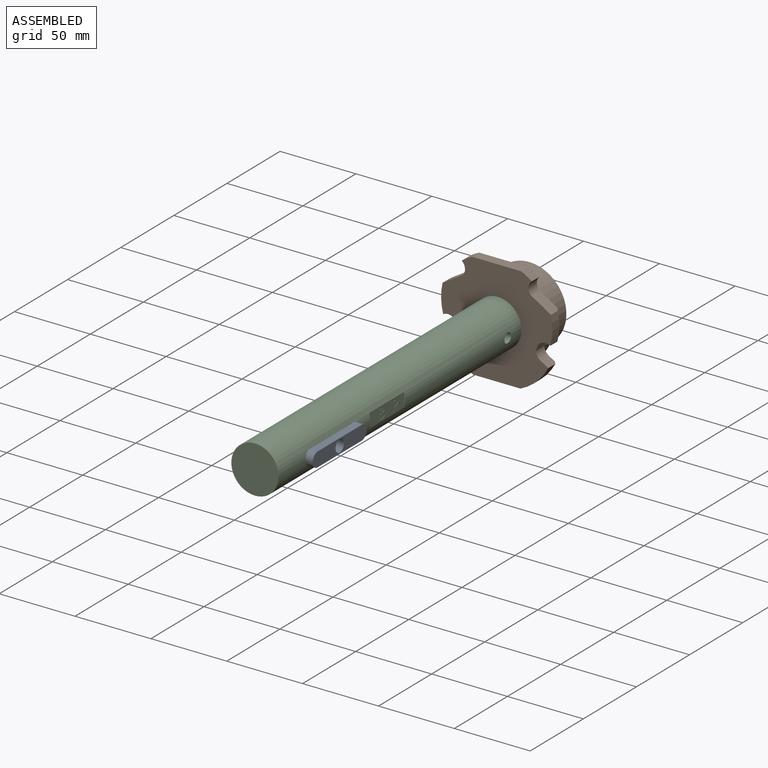
[diagram: assembled view]
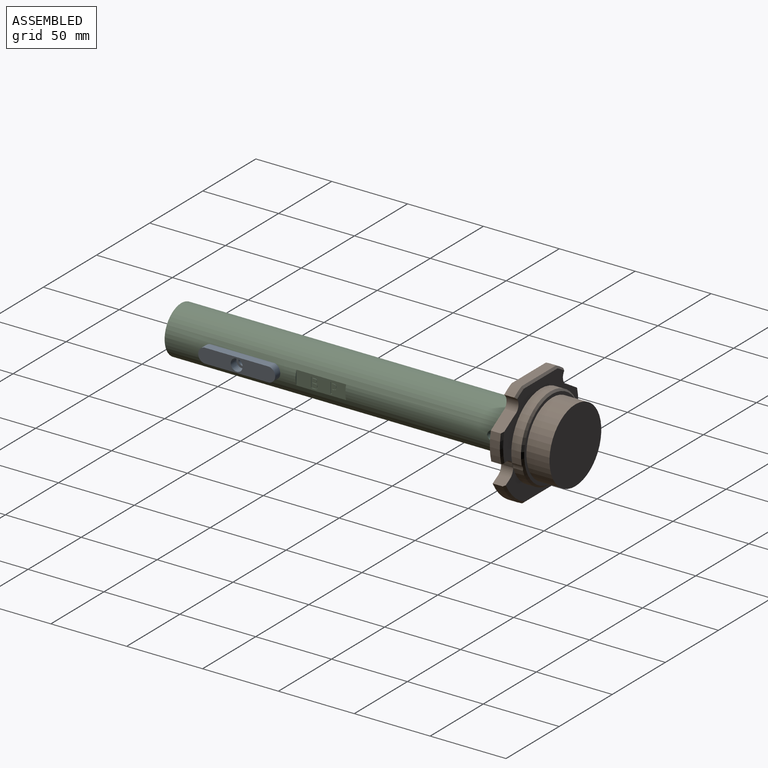
[diagram: assembled view, second angle]
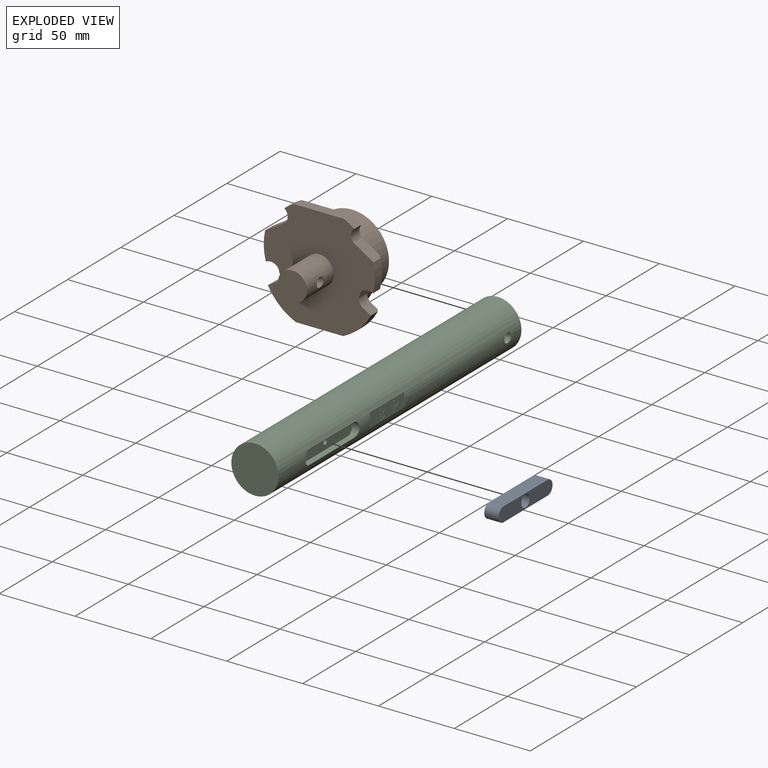
[diagram: exploded view]
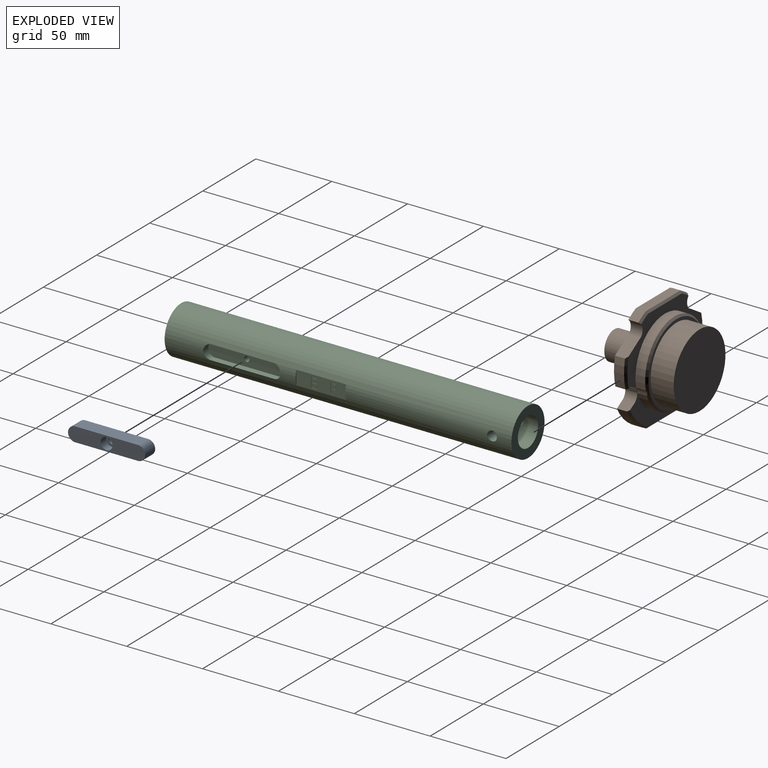
[diagram: exploded view, second angle]
ASSEMBLY  parts=3 mates=2
PART A: 9 faces, bbox 50.8x9.5x9.5 mm
  f0: plane 42.57x9.49mm, normal (0,1,0), area 403.8mm2, adj f1,f3,f4,f5
  f1: cylinder r=4.78mm len=9.49mm, axis (0,0,-1), area 129.9mm2, adj f0,f2,f4,f5
  f2: plane 42.57x9.49mm, normal (0,-1,0), area 403.8mm2, adj f1,f3,f4,f5
  f3: cylinder r=4.78mm len=9.49mm, axis (0,0,-1), area 129.9mm2, adj f0,f2,f4,f5
  f4: plane 50.8x9.47mm, normal (0,0,1), area 444.2mm2, adj f0,f1,f2,f3,f8
  f5: plane 50.8x9.47mm, normal (0,0,-1), area 413.8mm2, adj f0,f1,f2,f3,f6
  f6: cylinder r=3.94mm len=7.87mm, axis (0,0,-1), area 129.7mm2, adj f5,f7
  f7: plane 7.87x7.87mm, normal (0,0,-1), area 30.4mm2, adj f6,f8
  f8: cylinder r=2.41mm len=4.83mm, axis (0,0,-1), area 64.3mm2, adj f4,f7
PART B: 46 faces, bbox 73.4x56.2x70.1 mm
  f0: cylinder r=9.53mm len=25.4mm, axis (0,1,0), area 1455.9mm2, adj f26,f44,f45
  f1: plane 3.47x1.05mm, normal (0,1,0), area 0.8mm2, adj f5,f28
  f2: plane 65.72x24.12mm, normal (0,1,0), area 611.5mm2, adj f6,f7,f11,f12,f29,f41,f42,f43
  f3: plane 3.47x1.05mm, normal (0,1,0), area 0.8mm2, adj f13,f30
  f4: cylinder r=6.22mm len=8.34mm, axis (0,1,0), area 73.4mm2, adj f5,f25,f26,f27,f40
  f5: cylinder r=27.69mm len=7.87mm, axis (0,1,0), area 28.6mm2, adj f1,f4,f6,f26
  f6: cylinder r=6.22mm len=7.87mm, axis (0,1,0), area 50.7mm2, adj f2,f5,f7,f26
  f7: plane 7.88x4.99mm, normal (-0.51,0,0.86), area 44.8mm2, adj f2,f6,f8,f26,f43
  f8: cylinder r=38.45mm len=18.33mm, axis (0,1,0), area 168.6mm2, adj f7,f9,f26,f43
  f9: plane 31.24x6.6mm, normal (0,0,-1), area 206.3mm2, adj f8,f10,f26,f42
  f10: cylinder r=38.45mm len=18.33mm, axis (0,1,0), area 168.6mm2, adj f9,f11,f26,f41
  f11: plane 7.88x4.99mm, normal (0.51,0,0.86), area 44.8mm2, adj f2,f10,f12,f26,f41
  f12: cylinder r=6.22mm len=7.87mm, axis (0,1,0), area 50.7mm2, adj f2,f11,f13,f26
  f13: cylinder r=27.69mm len=7.87mm, axis (0,1,0), area 28.6mm2, adj f3,f12,f14,f26
  f14: cylinder r=6.22mm len=8.34mm, axis (0,1,0), area 73.4mm2, adj f13,f15,f26,f27,f36
  f15: cylinder r=38.46mm len=18.54mm, axis (0,1,0), area 123.7mm2, adj f14,f16,f26,f36
  f16: plane 10.61x7.9mm, normal (0.53,0,0.85), area 96.7mm2, adj f15,f17,f26,f27,f36
  f17: plane 7.87x2.61mm, normal (0.5,0,0.87), area 23.8mm2, adj f16,f18,f26,f27
  f18: cylinder r=5.71mm len=8.53mm, axis (0,1,0), area 75.2mm2, adj f17,f19,f26,f27,f39
  f19: cylinder r=38.45mm len=6.95mm, axis (0,1,0), area 53.6mm2, adj f18,f20,f26,f39
  f20: plane 32.31x6.6mm, normal (0,0,1), area 213.4mm2, adj f19,f21,f26,f38
  f21: cylinder r=38.45mm len=6.95mm, axis (0,1,0), area 53.6mm2, adj f20,f22,f26,f37
  f22: cylinder r=5.71mm len=8.53mm, axis (0,1,0), area 75.2mm2, adj f21,f23,f26,f27,f37
  f23: plane 7.87x2.61mm, normal (-0.5,0,0.87), area 23.8mm2, adj f22,f24,f26,f27
  f24: plane 10.61x7.9mm, normal (-0.53,0,0.85), area 96.7mm2, adj f23,f25,f26,f27,f40
  f25: cylinder r=38.46mm len=18.54mm, axis (0,1,0), area 123.7mm2, adj f4,f24,f26,f40
  f26: plane 73.34x70.02mm, normal (0,-1,0), area 3734.6mm2, adj f0,f4,f5,f6,f7,f8,f9,f10
  f27: plane 70.8x39.89mm, normal (0,1,0), area 788.9mm2, adj f4,f14,f16,f17,f18,f22,f23,f24
  f28: cylinder r=6.22mm len=6.68mm, axis (0,-1,0), area 24.2mm2, adj f1,f29,f31,f33
  f29: cylinder r=27.69mm len=51.83mm, axis (0,-1,0), area 425.8mm2, adj f2,f28,f30,f33
  f30: cylinder r=6.22mm len=6.68mm, axis (0,-1,0), area 24.2mm2, adj f3,f29,f31,f33
  f31: cylinder r=27.69mm len=55.37mm, axis (0,-1,0), area 632.6mm2, adj f27,f28,f30,f33
  f32: plane 52.83x52.83mm, normal (0,1,0), area 324.3mm2, adj f33,f34
  f33: cone r=27.69mm half-angle=45deg, axis (0,-1,0), area 303mm2, adj f28,f29,f30,f31,f32
  f34: cylinder r=24.38mm len=48.77mm, axis (0,-1,0), area 2334.9mm2, adj f32,f35
  f35: plane 48.77x48.77mm, normal (0,1,0), area 1867.9mm2, adj f34
  f36: cone r=37.19mm half-angle=45deg, axis (0,-1,0), area 34mm2, adj f14,f15,f16,f27
  f37: cone r=38.45mm half-angle=45deg, axis (0,-1,0), area 13.9mm2, adj f21,f22,f27,f38
  f38: plane 32.32x1.27mm, normal (0,0.71,0.71), area 57.5mm2, adj f20,f27,f37,f39
  f39: cone r=38.45mm half-angle=45deg, axis (0,-1,0), area 13.9mm2, adj f18,f19,f27,f38
  f40: cone r=38.46mm half-angle=45deg, axis (0,-1,0), area 34mm2, adj f4,f24,f25,f27
  f41: cone r=38.45mm half-angle=45deg, axis (0,-1,0), area 44.9mm2, adj f2,f10,f11,f42
  f42: plane 31.25x1.27mm, normal (0,0.71,-0.71), area 55.6mm2, adj f2,f9,f41,f43
  f43: cone r=38.45mm half-angle=45deg, axis (0,-1,0), area 44.9mm2, adj f2,f7,f8,f42
  f44: plane 19.05x19.05mm, normal (0,-1,0), area 285mm2, adj f0
  f45: cylinder r=3.17mm len=19.05mm, axis (1,0,0), area 369.2mm2, adj f0
PART C: 62 faces, bbox 228.6x31.2x31.2 mm
  f0: plane 32.77x9.39mm, normal (0,1,0), area 260.6mm2, adj f1,f13,f14,f27,f28,f29,f30,f31
  f1: cylinder r=15.58mm len=228.6mm, axis (-1,0,0), area 21536.6mm2, adj f0,f2,f3,f4,f5,f6,f7,f13
  f2: plane 31.17x31.17mm, normal (1,0,0), area 477.8mm2, adj f1,f11
  f3: plane 31.17x31.17mm, normal (-1,0,0), area 762.9mm2, adj f1
  f4: plane 42.57x4.05mm, normal (0,0,-1), area 172.4mm2, adj f1,f5,f7,f8
  f5: cylinder r=4.78mm len=9.47mm, axis (0,1,0), area 60.9mm2, adj f1,f4,f6,f8
  f6: plane 42.57x4.05mm, normal (0,0,1), area 172.4mm2, adj f1,f5,f7,f8
  f7: cylinder r=4.78mm len=9.47mm, axis (0,1,0), area 60.9mm2, adj f1,f4,f6,f8
  f8: plane 50.8x9.47mm, normal (0,1,0), area 453.1mm2, adj f4,f5,f6,f7,f9
  f9: cylinder r=1.73mm len=19.05mm, axis (0,1,0), area 206.7mm2, adj f8,f10
  f10: plane 3.45x3.45mm, normal (0,1,0), area 9.4mm2, adj f9
  f11: cylinder r=9.53mm len=50.8mm, axis (1,0,0), area 2976.1mm2, adj f2,f12,f60,f61
  f12: plane 19.05x19.05mm, normal (1,0,0), area 285mm2, adj f11
  f13: plane 9.39x0.72mm, normal (-1,0,0), area 4.6mm2, adj f0,f1
  f14: plane 9.39x0.72mm, normal (1,0,0), area 4.6mm2, adj f0,f1
  f15: plane 2.52x0.25mm, normal (-1,0,0), area 0.6mm2, adj f16,f39,f40,f58
  f16: plane 1.34x0.25mm, normal (0,0,-1), area 0.3mm2, adj f15,f17,f40,f58
  f17: extruded ~1.28x0.29mm, area 0.3mm2, adj f16,f18,f40,f58
  f18: extruded ~0.92x0.42mm, area 0.3mm2, adj f17,f19,f40,f58
  f19: extruded ~0.99x0.41mm, area 0.3mm2, adj f18,f20,f40,f58
  f20: extruded ~1.23x0.32mm, area 0.3mm2, adj f19,f39,f40,f58
  f21: plane 1.29x0.25mm, normal (0,0,1), area 0.3mm2, adj f22,f37,f40,f41
  f22: plane 2.2x0.25mm, normal (-1,0,0), area 0.6mm2, adj f21,f23,f40,f41
  f23: plane 1.15x0.25mm, normal (0,0,-1), area 0.3mm2, adj f22,f24,f40,f41
  f24: extruded ~1.29x0.25mm, area 0.3mm2, adj f23,f25,f40,f41
  f25: extruded ~0.82x0.4mm, area 0.2mm2, adj f24,f26,f40,f41
  f26: extruded ~0.88x0.36mm, area 0.3mm2, adj f25,f37,f40,f41
  f27: plane 1.9x0.25mm, normal (0,0,1), area 0.5mm2, adj f0,f28,f38,f40
  f28: plane 6.72x0.25mm, normal (1,0,0), area 1.7mm2, adj f0,f27,f29,f40
  f29: plane 2.35x0.25mm, normal (0,0,-1), area 0.6mm2, adj f0,f28,f30,f40
  f30: extruded ~1.7x0.51mm, area 0.5mm2, adj f0,f29,f31,f40
  f31: extruded ~1.41x0.61mm, area 0.4mm2, adj f0,f30,f32,f40
  f32: extruded ~1.61x1.53mm, area 0.6mm2, adj f0,f31,f33,f40
  f33: plane 0.25x0.05mm, normal (-1,0,0), area 0mm2, adj f0,f32,f34,f40
  f34: extruded ~0.97x0.5mm, area 0.3mm2, adj f0,f33,f35,f40
  f35: extruded ~0.99x0.33mm, area 0.3mm2, adj f0,f34,f36,f40
  f36: extruded ~1.26x0.6mm, area 0.4mm2, adj f0,f35,f38,f40
  f37: extruded ~1.19x0.26mm, area 0.3mm2, adj f21,f26,f40,f41
  f38: extruded ~1.94x0.4mm, area 0.5mm2, adj f0,f27,f36,f40
  f39: plane 1.4x0.25mm, normal (0,0,1), area 0.4mm2, adj f15,f20,f40,f58
  f40: plane 6.72x4.66mm, normal (0,1,0), area 15.4mm2, adj f15,f16,f17,f18,f19,f20,f21,f22
  f41: plane 2.84x2.2mm, normal (0,1,0), area 5.7mm2, adj f21,f22,f23,f24,f25,f26,f37
  f42: plane 0.73x0.25mm, normal (0,0,1), area 0.2mm2, adj f43,f56,f57,f59
  f43: plane 2.83x0.25mm, normal (-1,0,0), area 0.7mm2, adj f42,f44,f57,f59
  f44: plane 0.91x0.25mm, normal (0,0,-1), area 0.2mm2, adj f43,f45,f57,f59
  f45: extruded ~1.41x0.34mm, area 0.4mm2, adj f44,f46,f57,f59
  f46: extruded ~1.03x0.45mm, area 0.3mm2, adj f45,f47,f57,f59
  f47: extruded ~1.12x0.48mm, area 0.3mm2, adj f46,f56,f57,f59
  f48: extruded ~1.63x0.72mm, area 0.5mm2, adj f0,f49,f55,f57
  f49: extruded ~2.61x2.03mm, area 1mm2, adj f0,f48,f50,f57
  f50: plane 1.81x0.25mm, normal (0,0,1), area 0.5mm2, adj f0,f49,f51,f57
  f51: plane 6.97x0.25mm, normal (1,0,0), area 1.8mm2, adj f0,f50,f52,f57
  f52: plane 0.81x0.25mm, normal (0,0,-1), area 0.2mm2, adj f0,f51,f53,f57
  f53: plane 2.74x0.25mm, normal (-1,0,0), area 0.7mm2, adj f0,f52,f54,f57
  f54: plane 0.82x0.25mm, normal (0,0,-1), area 0.2mm2, adj f0,f53,f55,f57
  f55: extruded ~2.07x0.57mm, area 0.6mm2, adj f0,f48,f54,f57
  f56: extruded ~1.56x0.35mm, area 0.4mm2, adj f42,f47,f57,f59
  f57: plane 6.97x4.42mm, normal (0,1,0), area 12mm2, adj f42,f43,f44,f45,f46,f47,f48,f49
  f58: plane 3.04x2.52mm, normal (0,1,0), area 7mm2, adj f15,f16,f17,f18,f19,f20,f39
  f59: plane 2.83x2.77mm, normal (0,1,0), area 7mm2, adj f42,f43,f44,f45,f46,f47,f56
  f60: cylinder r=3.17mm len=6.6mm, axis (0,-1,0), area 123mm2, adj f1,f11
  f61: cylinder r=3.17mm len=6.6mm, axis (0,-1,0), area 123mm2, adj f1,f11
PLACE A rot(axis=(0.58,-0.58,-0.58),120deg) t=(-59.27,-259.02,28.67)mm
PLACE B rot(axis=(0,1,0),0deg) t=(-80.26,-73.35,28.67)mm
PLACE C rot(axis=(-0.71,-0.71,0),180deg) t=(-79.55,-309.82,28.67)mm
MATE fastened A.f1 <-> C.f7  axis (-1,0,0) through (-68.75,-238.41,28.67)mm
MATE fastened C.f60 <-> B.f45  axis (-1,0,0) through (-70.61,-94.05,28.67)mm
